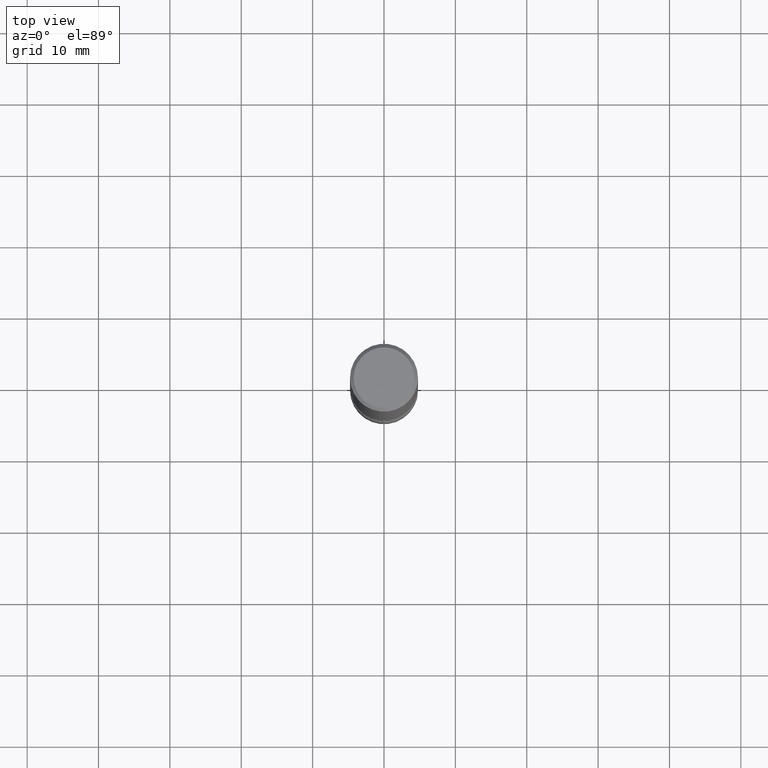
[diagram: clean part render]
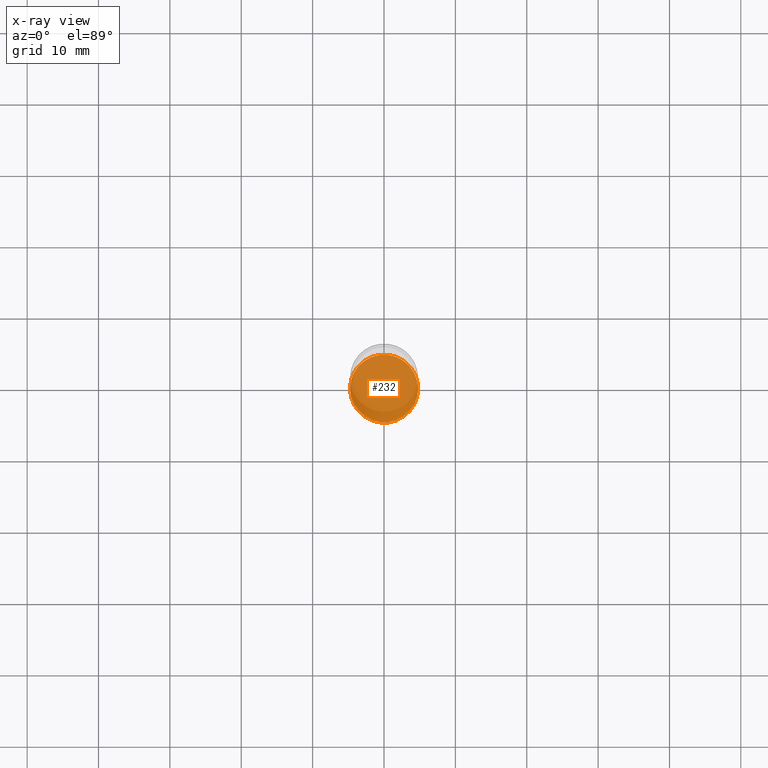
[diagram: x-ray — body ghosted, one internal face saturated and labeled with its STEP entity id]
A machine part, top view, then the same camera in x-ray: the body is ghosted and one INTERNAL B-rep face — a face not visible from any outside direction — is saturated and labeled: STEP entity #232.
In plain terms, the highlighted planar face has unit normal (0, -0, -1).
Its self-contained STEP definition (entity closure, byte-faithful):
#20 = CARTESIAN_POINT ( 'NONE',  ( 0.1875000000000003608, -1.352949018801718751E-14, -3.500000000000000000 ) ) ;
#26 = EDGE_CURVE ( 'NONE', #440, #539, #395, .T. ) ;
#72 = FACE_OUTER_BOUND ( 'NONE', #444, .T. ) ;
#94 = CARTESIAN_POINT ( 'NONE',  ( -0.1875000000000003608, -1.172587257772317476E-14, -3.500000000000000000 ) ) ;
#120 = DIRECTION ( 'NONE',  ( 2.438088387897960049E-29, -3.491481338843145188E-15, -1.000000000000000000 ) ) ;
#121 = EDGE_CURVE ( 'NONE', #539, #440, #481, .T. ) ;
#128 = CARTESIAN_POINT ( 'NONE',  ( 8.559140821647976968E-29, -1.222018468595100934E-14, -3.500000000000000000 ) ) ;
#149 = DIRECTION ( 'NONE',  ( -2.445468806185136597E-29, 3.491481338843145583E-15, 1.000000000000000000 ) ) ;
#173 = ORIENTED_EDGE ( 'NONE', *, *, #26, .T. ) ;
#174 = CARTESIAN_POINT ( 'NONE',  ( 8.559140821647976968E-29, -1.222018468595100934E-14, -3.500000000000000000 ) ) ;
#232 = ADVANCED_FACE ( 'NONE', ( #72 ), #389, .F. ) ;
#236 = DIRECTION ( 'NONE',  ( 1.000000000000000000, -6.982962677686269866E-15, 0.000000000000000000 ) ) ;
#303 = DIRECTION ( 'NONE',  ( -2.445468806185136597E-29, 3.491481338843145583E-15, 1.000000000000000000 ) ) ;
#317 = ORIENTED_EDGE ( 'NONE', *, *, #121, .T. ) ;
#325 = AXIS2_PLACEMENT_3D ( 'NONE', #128, #303, #345 ) ;
#345 = DIRECTION ( 'NONE',  ( 1.000000000000000000, -6.982962677686269866E-15, 0.000000000000000000 ) ) ;
#389 = PLANE ( 'NONE',  #531 ) ;
#395 = CIRCLE ( 'NONE', #325, 0.1875000000000003608 ) ;
#415 = DIRECTION ( 'NONE',  ( -1.000000000000000000, 6.982962677686265922E-15, -4.876176775795935793E-29 ) ) ;
#440 = VERTEX_POINT ( 'NONE', #94 ) ;
#444 = EDGE_LOOP ( 'NONE', ( #317, #173 ) ) ;
#481 = CIRCLE ( 'NONE', #530, 0.1875000000000003608 ) ;
#530 = AXIS2_PLACEMENT_3D ( 'NONE', #174, #149, #236 ) ;
#531 = AXIS2_PLACEMENT_3D ( 'NONE', #554, #120, #415 ) ;
#539 = VERTEX_POINT ( 'NONE', #20 ) ;
#554 = CARTESIAN_POINT ( 'NONE',  ( 8.559140821647976968E-29, -1.222018468595100934E-14, -3.500000000000000000 ) ) ;